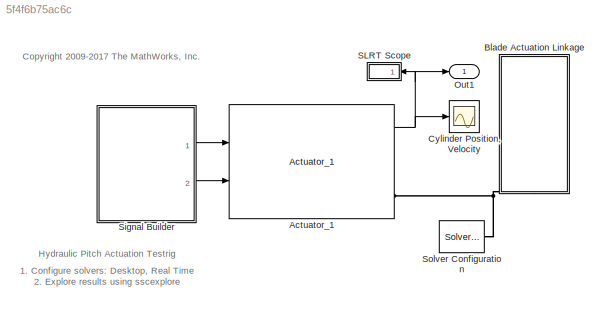
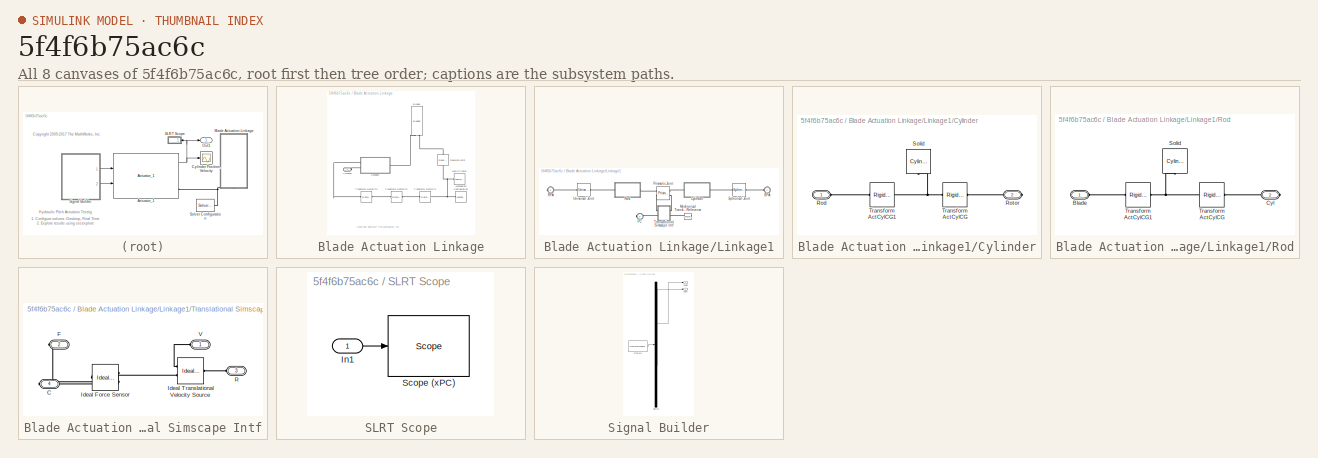
[diagram: thumbnail index - all 8 canvases of the model, root first then tree order]
MODEL slx_5f4f6b75ac6c
KIND model
CONFIG AbsTol = auto
CONFIG EnableMultiTasking = on
CONFIG FixedStep = auto
CONFIG MaxStep = auto
CONFIG MinStep = auto
CONFIG PostLoadFcn = warning off Simulink:Engine:OutputNotConnected\nwarning off sm:compiler:topologyAnalysis:DanglingBlock\nwarning off sm:sli:setup:compile:LocalSolverNotSupported\nwarning off Simulink:Engine:SaveWithParameterizedLinks_Warning\nwarning off Simulink:Commands:SetParamLinkChangeWarn\n\nwarning('off','Simulink:Commands:LoadMdlParameterizedLink');\n\nset_param(bdroot,'SaveWithParameterizedLinksMsg','off');\n
CONFIG PreLoadFcn = warning('off','Simulink:Commands:LoadMdlParameterizedLink');\n
CONFIG RelTol = 1e-3
CONFIG SampleTimeConstraint = Unconstrained
CONFIG Solver = ode15s
CONFIG SolverName = ode15s
CONFIG StartTime = 0.0
CONFIG StopTime = 10
BLOCK [Reference] Actuator_1  REF=Hydraulic_Actuator_Lib/Actuator_1
  Ports = [2, 3, 0, 0, 0, 0, 1]
  SourceBlock = Hydraulic_Actuator_Lib/Actuator_1
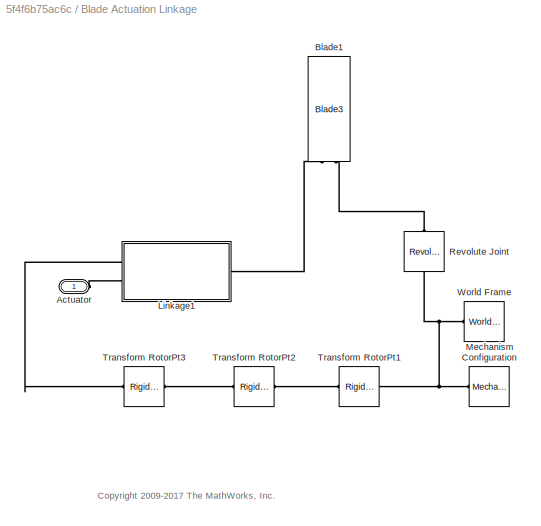
BLOCK [SubSystem] Blade Actuation Linkage
  Ports = [0, 0, 0, 0, 0, 1]
  RequestExecContextInheritance = off
BLOCK [PMIOPort] Blade Actuation Linkage/Actuator
  Side = Left
BLOCK [Reference] Blade Actuation Linkage/Blade1  REF=Blades_Lib/Blades/Blade3
  Ports = [0, 0, 0, 0, 0, 2, 1]
  SourceBlock = Blades_Lib/Blades/Blade3
  SourceType = SubSystem
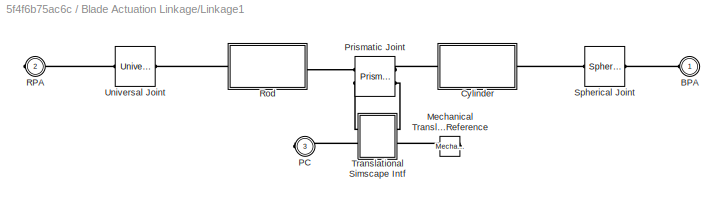
BLOCK [SubSystem] Blade Actuation Linkage/Linkage1
  Ports = [0, 0, 0, 0, 0, 1, 2]
  RequestExecContextInheritance = off
BLOCK [PMIOPort] Blade Actuation Linkage/Linkage1/BPA
  Side = Left
BLOCK [SubSystem] Blade Actuation Linkage/Linkage1/Cylinder
  Ports = [0, 0, 0, 0, 0, 1, 1]
  RequestExecContextInheritance = off
BLOCK [PMIOPort] Blade Actuation Linkage/Linkage1/Cylinder/Rod
  Side = Left
BLOCK [PMIOPort] Blade Actuation Linkage/Linkage1/Cylinder/Rotor
  Port = 2
  Side = Right
BLOCK [Reference] Blade Actuation Linkage/Linkage1/Cylinder/Solid  REF=sm_lib/Body Elements/Cylindrical Solid
  Ports = [0, 0, 0, 0, 0, 0, 1]
  SourceBlock = sm_lib/Body Elements/Cylindrical Solid
  SourceProductBaseCode = MS
  SourceProductName = Simscape Multibody
  SourceType = Cylindrical Solid
BLOCK [Reference] Blade Actuation Linkage/Linkage1/Cylinder/Transform ActCylCG  REF=sm_lib/Frames and
Transforms/Rigid
Transform
  Ports = [0, 0, 0, 0, 0, 1, 1]
  SourceBlock = sm_lib/Frames and\nTransforms/Rigid\nTransform
  SourceProductBaseCode = MS
  SourceProductName = Simscape Multibody
  SourceType = Rigid\nTransform
BLOCK [Reference] Blade Actuation Linkage/Linkage1/Cylinder/Transform ActCylCG1  REF=sm_lib/Frames and
Transforms/Rigid
Transform
  Ports = [0, 0, 0, 0, 0, 1, 1]
  SourceBlock = sm_lib/Frames and\nTransforms/Rigid\nTransform
  SourceProductBaseCode = MS
  SourceProductName = Simscape Multibody
  SourceType = Rigid\nTransform
BLOCK [Reference] Blade Actuation Linkage/Linkage1/Mechanical Translational Reference  REF=fl_lib/Mechanical/Translational
Elements/Mechanical
Translational
Reference
  Ports = [0, 0, 0, 0, 0, 1]
  SourceBlock = fl_lib/Mechanical/Translational\nElements/Mechanical\nTranslational\nReference
  SourceProductBaseCode = SS
  SourceProductName = Simscape
  SourceType = Mechanical\nTranslational\nReference
BLOCK [PMIOPort] Blade Actuation Linkage/Linkage1/PC
  Port = 3
  Side = Right
BLOCK [Reference] Blade Actuation Linkage/Linkage1/Prismatic  Joint  REF=sm_lib/Joints/Prismatic
Joint
  Ports = [0, 0, 0, 0, 0, 2, 2]
  SourceBlock = sm_lib/Joints/Prismatic\nJoint
  SourceProductBaseCode = MS
  SourceProductName = Simscape Multibody
  SourceType = Prismatic\nJoint
BLOCK [PMIOPort] Blade Actuation Linkage/Linkage1/RPA
  Port = 2
  Side = Right
BLOCK [SubSystem] Blade Actuation Linkage/Linkage1/Rod
  Ports = [0, 0, 0, 0, 0, 1, 1]
  RequestExecContextInheritance = off
BLOCK [PMIOPort] Blade Actuation Linkage/Linkage1/Rod/Blade
  Side = Left
BLOCK [PMIOPort] Blade Actuation Linkage/Linkage1/Rod/Cyl
  Port = 2
  Side = Right
BLOCK [Reference] Blade Actuation Linkage/Linkage1/Rod/Solid  REF=sm_lib/Body Elements/Cylindrical Solid
  Ports = [0, 0, 0, 0, 0, 0, 1]
  SourceBlock = sm_lib/Body Elements/Cylindrical Solid
  SourceProductBaseCode = MS
  SourceProductName = Simscape Multibody
  SourceType = Cylindrical Solid
BLOCK [Reference] Blade Actuation Linkage/Linkage1/Rod/Transform ActCylCG  REF=sm_lib/Frames and
Transforms/Rigid
Transform
  Ports = [0, 0, 0, 0, 0, 1, 1]
  SourceBlock = sm_lib/Frames and\nTransforms/Rigid\nTransform
  SourceProductBaseCode = MS
  SourceProductName = Simscape Multibody
  SourceType = Rigid\nTransform
BLOCK [Reference] Blade Actuation Linkage/Linkage1/Rod/Transform ActCylCG1  REF=sm_lib/Frames and
Transforms/Rigid
Transform
  Ports = [0, 0, 0, 0, 0, 1, 1]
  SourceBlock = sm_lib/Frames and\nTransforms/Rigid\nTransform
  SourceProductBaseCode = MS
  SourceProductName = Simscape Multibody
  SourceType = Rigid\nTransform
BLOCK [Reference] Blade Actuation Linkage/Linkage1/Spherical  Joint  REF=sm_lib/Joints/Spherical
Joint
  Ports = [0, 0, 0, 0, 0, 1, 1]
  SourceBlock = sm_lib/Joints/Spherical\nJoint
  SourceProductBaseCode = MS
  SourceProductName = Simscape Multibody
  SourceType = Spherical\nJoint
BLOCK [SubSystem] Blade Actuation Linkage/Linkage1/Translational Simscape Intf
  Ports = [0, 0, 0, 0, 0, 2, 2]
  RequestExecContextInheritance = off
BLOCK [PMIOPort] Blade Actuation Linkage/Linkage1/Translational Simscape Intf/C
  Port = 4
  Side = Right
BLOCK [PMIOPort] Blade Actuation Linkage/Linkage1/Translational Simscape Intf/F
  Port = 2
  Side = Right
BLOCK [Reference] Blade Actuation Linkage/Linkage1/Translational Simscape Intf/Ideal Force Sensor  REF=fl_lib/Mechanical/Mechanical Sensors/Ideal Force Sensor
  Ports = [0, 0, 0, 0, 0, 1, 2]
  SourceBlock = fl_lib/Mechanical/Mechanical Sensors/Ideal Force Sensor
  SourceProductBaseCode = SS
  SourceProductName = Simscape
  SourceType = Ideal Force Sensor
BLOCK [Reference] Blade Actuation Linkage/Linkage1/Translational Simscape Intf/Ideal Translational Velocity Source  REF=fl_lib/Mechanical/Mechanical Sources/Ideal Translational
Velocity Source
  Ports = [0, 0, 0, 0, 0, 1, 2]
  SourceBlock = fl_lib/Mechanical/Mechanical Sources/Ideal Translational\nVelocity Source
  SourceProductBaseCode = SS
  SourceProductName = Simscape
  SourceType = Ideal Translational\nVelocity Source
BLOCK [PMIOPort] Blade Actuation Linkage/Linkage1/Translational Simscape Intf/R
  Port = 3
  Side = Left
BLOCK [PMIOPort] Blade Actuation Linkage/Linkage1/Translational Simscape Intf/V
  Side = Left
BLOCK [Reference] Blade Actuation Linkage/Linkage1/Universal  Joint  REF=sm_lib/Joints/Universal
Joint
  Ports = [0, 0, 0, 0, 0, 1, 1]
  SourceBlock = sm_lib/Joints/Universal\nJoint
  SourceProductBaseCode = MS
  SourceProductName = Simscape Multibody
  SourceType = Universal\nJoint
BLOCK [Reference] Blade Actuation Linkage/Mechanism Configuration  REF=sm_lib/Utilities/Mechanism
Configuration
  Ports = [0, 0, 0, 0, 0, 0, 1]
  SourceBlock = sm_lib/Utilities/Mechanism\nConfiguration
  SourceProductBaseCode = MS
  SourceProductName = Simscape Multibody
  SourceType = Mechanism\nConfiguration
BLOCK [Reference] Blade Actuation Linkage/Revolute Joint  REF=sm_lib/Joints/Revolute Joint
  Ports = [0, 0, 0, 0, 0, 1, 1]
  SourceBlock = sm_lib/Joints/Revolute Joint
  SourceProductBaseCode = MS
  SourceProductName = Simscape Multibody
  SourceType = Revolute Joint
BLOCK [Reference] Blade Actuation Linkage/Transform RotorPt1  REF=sm_lib/Frames and
Transforms/Rigid
Transform
  Ports = [0, 0, 0, 0, 0, 1, 1]
  SourceBlock = sm_lib/Frames and\nTransforms/Rigid\nTransform
  SourceProductBaseCode = MS
  SourceProductName = Simscape Multibody
  SourceType = Rigid\nTransform
BLOCK [Reference] Blade Actuation Linkage/Transform RotorPt2  REF=sm_lib/Frames and
Transforms/Rigid
Transform
  Ports = [0, 0, 0, 0, 0, 1, 1]
  SourceBlock = sm_lib/Frames and\nTransforms/Rigid\nTransform
  SourceProductBaseCode = MS
  SourceProductName = Simscape Multibody
  SourceType = Rigid\nTransform
BLOCK [Reference] Blade Actuation Linkage/Transform RotorPt3  REF=sm_lib/Frames and
Transforms/Rigid
Transform
  Ports = [0, 0, 0, 0, 0, 1, 1]
  SourceBlock = sm_lib/Frames and\nTransforms/Rigid\nTransform
  SourceProductBaseCode = MS
  SourceProductName = Simscape Multibody
  SourceType = Rigid\nTransform
BLOCK [Reference] Blade Actuation Linkage/World Frame  REF=sm_lib/Frames and
Transforms/World Frame
  Ports = [0, 0, 0, 0, 0, 0, 1]
  SourceBlock = sm_lib/Frames and\nTransforms/World Frame
  SourceProductBaseCode = MS
  SourceProductName = Simscape Multibody
  SourceType = World Frame
BLOCK [Scope] Cylinder Position, Velocity
  Floating = off
  NumInputPorts = 1
  Ports = [1]
  ScopeSpecificationString = Simulink.scopes.TimeScopeBlockCfg('CurrentConfiguration', extmgr.ConfigurationSet(extmgr.Configuration('Core','General UI',true,'FigureColor',[0.5 0.5 0.5]),extmgr.Configuration('Core','Source UI',true),extmgr.Configuration('Sources','WiredSimulink',true,'DataLoggingSaveFormat','StructureWithTime','DataLoggingDecimation','1','DataLogging',true,'DataLoggingVariableName','PCT_Orifice_Test_DATA'),ext...<+2661ch>
BLOCK [Outport] Out1
  IconDisplay = Port number
BLOCK [SubSystem] SLRT Scope
  Ports = [1]
  RequestExecContextInheritance = off
BLOCK [Inport] SLRT Scope/In1
  IconDisplay = Port number
BLOCK [Reference] SLRT Scope/Scope (xPC)   REF=slrtlib/Displays and
Logging/Scope 
  Ports = [1]
  SourceBlock = slrtlib/Displays and\nLogging/Scope
  SourceProductBaseCode = XP
  SourceProductName = Simulink Real-Time
  SourceType = xpcscopeblock
BLOCK [SubSystem] Signal Builder
  ClipboardFcn = sigbuilder_block('clipboard');
  CloseFcn = sigbuilder_block('close');
  ContinueFcn = sigbuilder_block('continue')
  CopyFcn = sigbuilder_block('copy');
  DeleteFcn = sigbuilder_block('delete');
  LoadFcn = sigbuilder_block('load');
  MaskHideContents = on
  ModelCloseFcn = sigbuilder_block('modelClose');
  NameChangeFcn = sigbuilder_block('namechange');
  OpenFcn = sigbuilder_block('open',[140.897 216 551.172 395.379 ]);
  PauseFcn = sigbuilder_block('pause')
  Ports = [0, 2]
  PreSaveFcn = sigbuilder_block('preSave');
  RequestExecContextInheritance = off
  StartFcn = sigbuilder_block('start');
  StopFcn = sigbuilder_block('stop');
  Tag = STV Subsys
BLOCK [Demux] Signal Builder/Demux
  Outputs = 2
  Ports = [1, 2]
  Tag = STV Demux
BLOCK [FromWorkspace] Signal Builder/FromWs
  SampleTime = 0
  Tag = STV FromWs
  VariableName = tuvar
  ZeroCross = on
BLOCK [Outport] Signal Builder/Power
  IconDisplay = Port number
  Tag = STV Outport
BLOCK [Outport] Signal Builder/Valve
  IconDisplay = Port number
  Port = 2
  Tag = STV Outport
BLOCK [Reference] Solver Configuration  REF=nesl_utility/Solver
Configuration
  Ports = [0, 0, 0, 0, 0, 0, 1]
  SourceBlock = nesl_utility/Solver\nConfiguration
  SourceProductBaseCode = SS
  SourceProductName = Simscape
  SourceType = Solver\nConfiguration
ANNOTATION (root): 1. Configure solvers: Desktop , Real Time 2. Explore results using sscexplore
ANNOTATION (root): <copyright redacted>
ANNOTATION (root): Hydraulic Pitch Actuation Testrig
ANNOTATION Blade Actuation Linkage: <copyright redacted>
NET Actuator_1:1 -> Cylinder Position, Velocity:1, Out1:1, SLRT Scope:1
LINE SLRT Scope/In1:1 -> SLRT Scope/Scope (xPC) :1
LINE Signal Builder:1 -> Actuator_1:1
LINE Signal Builder:2 -> Actuator_1:2
PNET net1: Actuator_1:RConn1 -- Blade Actuation Linkage:LConn1 -- Solver Configuration:RConn1
PLINE Blade Actuation Linkage/Actuator:RConn1 -- Blade Actuation Linkage/Linkage1:RConn2
PLINE Blade Actuation Linkage/Blade1:LConn1 -- Blade Actuation Linkage/Linkage1:LConn1
PLINE Blade Actuation Linkage/Blade1:LConn2 -- Blade Actuation Linkage/Revolute Joint:LConn1
PLINE Blade Actuation Linkage/Linkage1/BPA:RConn1 -- Blade Actuation Linkage/Linkage1/Spherical  Joint:RConn1
PLINE Blade Actuation Linkage/Linkage1/Cylinder/Rod:RConn1 -- Blade Actuation Linkage/Linkage1/Cylinder/Transform ActCylCG1:RConn1
PLINE Blade Actuation Linkage/Linkage1/Cylinder/Rotor:RConn1 -- Blade Actuation Linkage/Linkage1/Cylinder/Transform ActCylCG:LConn1
PNET net2: Blade Actuation Linkage/Linkage1/Cylinder/Solid:RConn1 -- Blade Actuation Linkage/Linkage1/Cylinder/Transform ActCylCG1:LConn1 -- Blade Actuation Linkage/Linkage1/Cylinder/Transform ActCylCG:RConn1
PLINE Blade Actuation Linkage/Linkage1/Cylinder:LConn1 -- Blade Actuation Linkage/Linkage1/Prismatic  Joint:LConn1
PLINE Blade Actuation Linkage/Linkage1/Cylinder:RConn1 -- Blade Actuation Linkage/Linkage1/Spherical  Joint:LConn1
PLINE Blade Actuation Linkage/Linkage1/Mechanical Translational Reference:LConn1 -- Blade Actuation Linkage/Linkage1/Translational Simscape Intf:RConn2
PLINE Blade Actuation Linkage/Linkage1/PC:RConn1 -- Blade Actuation Linkage/Linkage1/Translational Simscape Intf:LConn2
PLINE Blade Actuation Linkage/Linkage1/Prismatic  Joint:LConn2 -- Blade Actuation Linkage/Linkage1/Translational Simscape Intf:RConn1
PLINE Blade Actuation Linkage/Linkage1/Prismatic  Joint:RConn1 -- Blade Actuation Linkage/Linkage1/Rod:RConn1
PLINE Blade Actuation Linkage/Linkage1/Prismatic  Joint:RConn2 -- Blade Actuation Linkage/Linkage1/Translational Simscape Intf:LConn1
PLINE Blade Actuation Linkage/Linkage1/RPA:RConn1 -- Blade Actuation Linkage/Linkage1/Universal  Joint:RConn1
PLINE Blade Actuation Linkage/Linkage1/Rod/Blade:RConn1 -- Blade Actuation Linkage/Linkage1/Rod/Transform ActCylCG1:RConn1
PLINE Blade Actuation Linkage/Linkage1/Rod/Cyl:RConn1 -- Blade Actuation Linkage/Linkage1/Rod/Transform ActCylCG:LConn1
PNET net3: Blade Actuation Linkage/Linkage1/Rod/Solid:RConn1 -- Blade Actuation Linkage/Linkage1/Rod/Transform ActCylCG1:LConn1 -- Blade Actuation Linkage/Linkage1/Rod/Transform ActCylCG:RConn1
PLINE Blade Actuation Linkage/Linkage1/Rod:LConn1 -- Blade Actuation Linkage/Linkage1/Universal  Joint:LConn1
PLINE Blade Actuation Linkage/Linkage1/Translational Simscape Intf/C:RConn1 -- Blade Actuation Linkage/Linkage1/Translational Simscape Intf/Ideal Force Sensor:RConn1
PLINE Blade Actuation Linkage/Linkage1/Translational Simscape Intf/F:RConn1 -- Blade Actuation Linkage/Linkage1/Translational Simscape Intf/Ideal Force Sensor:RConn2
PLINE Blade Actuation Linkage/Linkage1/Translational Simscape Intf/Ideal Force Sensor:LConn1 -- Blade Actuation Linkage/Linkage1/Translational Simscape Intf/Ideal Translational Velocity Source:RConn2
PLINE Blade Actuation Linkage/Linkage1/Translational Simscape Intf/Ideal Translational Velocity Source:LConn1 -- Blade Actuation Linkage/Linkage1/Translational Simscape Intf/R:RConn1
PLINE Blade Actuation Linkage/Linkage1/Translational Simscape Intf/Ideal Translational Velocity Source:RConn1 -- Blade Actuation Linkage/Linkage1/Translational Simscape Intf/V:RConn1
PLINE Blade Actuation Linkage/Linkage1:RConn1 -- Blade Actuation Linkage/Transform RotorPt3:RConn1
PNET net4: Blade Actuation Linkage/Mechanism Configuration:RConn1 -- Blade Actuation Linkage/Revolute Joint:RConn1 -- Blade Actuation Linkage/Transform RotorPt1:LConn1 -- Blade Actuation Linkage/World Frame:RConn1
PLINE Blade Actuation Linkage/Transform RotorPt1:RConn1 -- Blade Actuation Linkage/Transform RotorPt2:LConn1
PLINE Blade Actuation Linkage/Transform RotorPt2:RConn1 -- Blade Actuation Linkage/Transform RotorPt3:LConn1
note: NET lines group one-source signal fan-out (src -> all destinations, sorted); 1:1 wires keep LINE; PNET lines group multi-terminal physical nets as a canonical sorted terminal list (undirected conserving connections); 2-terminal nets keep the pairwise PLINE form
